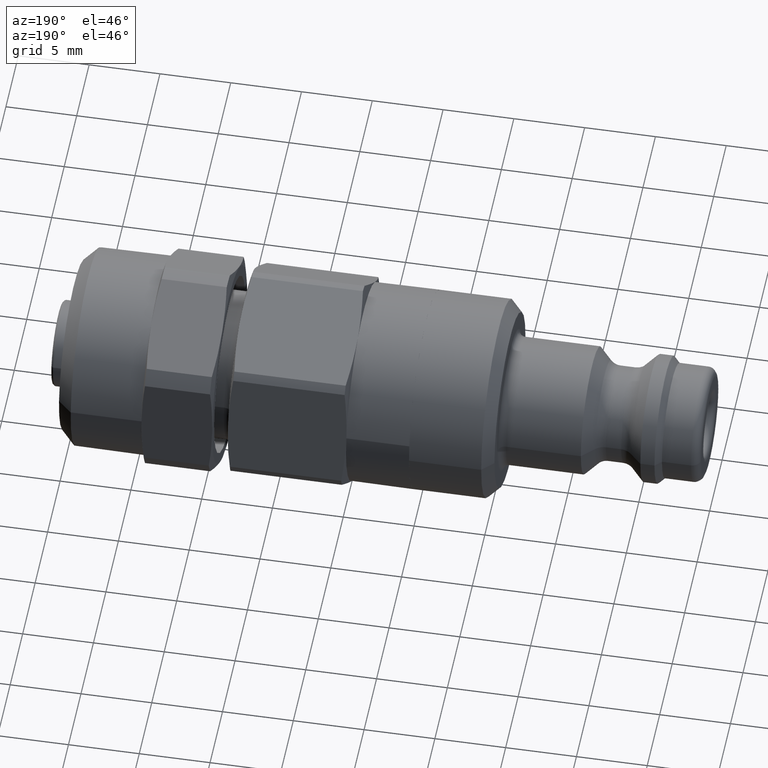
[diagram: clean part render]
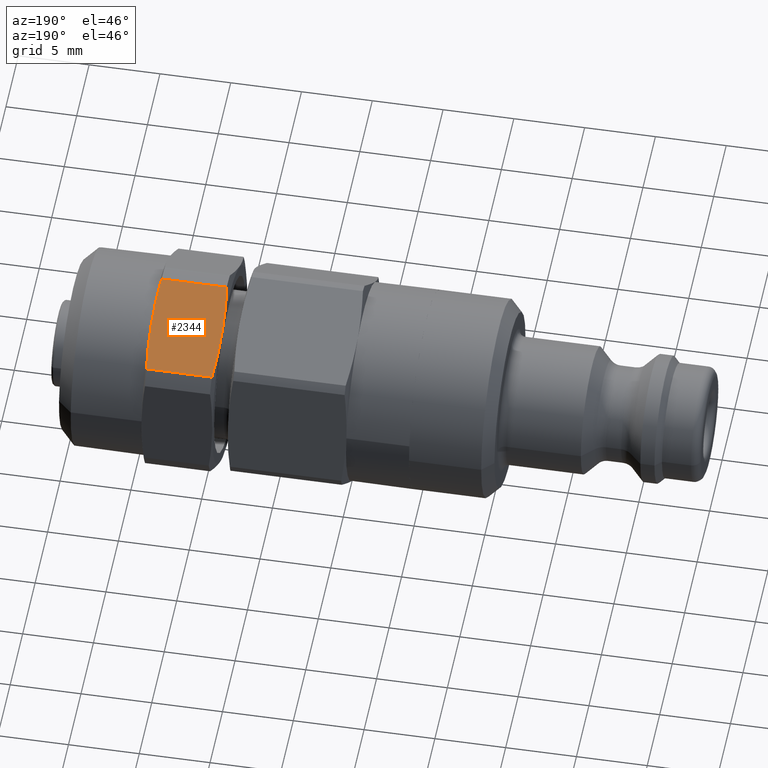
[diagram: same view with one face highlighted and labeled with its STEP entity id]
A machine part, auxiliary view. The second image highlights one B-rep face of the part: STEP entity #2344.
In plain terms, the highlighted planar face has unit normal (0, -0.4352, -0.9003).
Its self-contained STEP definition (entity closure, byte-faithful):
#2261=CARTESIAN_POINT('',(11.450868316666465,3.499999999999996,-6.062177826491075));
#2262=DIRECTION('',(0.0,-0.499999999999999,0.866025403784439));
#2263=DIRECTION('',(0.0,-0.866025403784439,-0.499999999999999));
#2264=AXIS2_PLACEMENT_3D('',#2261,#2262,#2263);
#2265=PLANE('',#2264);
#2266=CARTESIAN_POINT('',(6.000000000000001,3.499999999999996,-6.062177826491075));
#2267=VERTEX_POINT('',#2266);
#2268=CARTESIAN_POINT('',(6.200961894323342,0.619570344549269,-7.72519466344733));
#2269=VERTEX_POINT('',#2268);
#2270=CARTESIAN_POINT('',(6.000000000000002,3.499999999999996,-6.062177826491077));
#2271=CARTESIAN_POINT('',(6.000000000000002,2.133016434701335,-6.851406155894052));
#2272=CARTESIAN_POINT('',(6.200961894323342,0.619570344549265,-7.725194663447334));
#2280=(BOUNDED_CURVE()B_SPLINE_CURVE(2,(#2270,#2271,#2272),.UNSPECIFIED.,.F.,.U.)B_SPLINE_CURVE_WITH_KNOTS((3,3),(0.333349567326485,0.666699134652969),.UNSPECIFIED.)CURVE()GEOMETRIC_REPRESENTATION_ITEM()RATIONAL_B_SPLINE_CURVE((1.0,1.026436275942834,1.0))REPRESENTATION_ITEM(''));
#2281=EDGE_CURVE('',#2267,#2269,#2280,.T.);
#2282=ORIENTED_EDGE('',*,*,#2281,.F.);
#2283=CARTESIAN_POINT('',(6.200961894323342,6.380429655450723,-4.399160989534821));
#2284=VERTEX_POINT('',#2283);
#2285=CARTESIAN_POINT('',(6.200961894323342,6.380429655450728,-4.399160989534818));
#2286=CARTESIAN_POINT('',(6.000000000000002,4.866983565298657,-5.272949497088101));
#2287=CARTESIAN_POINT('',(6.000000000000002,3.499999999999996,-6.062177826491077));
#2295=(BOUNDED_CURVE()B_SPLINE_CURVE(2,(#2285,#2286,#2287),.UNSPECIFIED.,.F.,.U.)B_SPLINE_CURVE_WITH_KNOTS((3,3),(0.0,0.333349567326485),.UNSPECIFIED.)CURVE()GEOMETRIC_REPRESENTATION_ITEM()RATIONAL_B_SPLINE_CURVE((1.0,1.026436275942806,1.0))REPRESENTATION_ITEM(''));
#2296=EDGE_CURVE('',#2284,#2267,#2295,.T.);
#2297=ORIENTED_EDGE('',*,*,#2296,.F.);
#2298=CARTESIAN_POINT('',(10.799038105676662,6.38042965545072,-4.399160989534822));
#2299=VERTEX_POINT('',#2298);
#2300=CARTESIAN_POINT('',(10.799038105676662,6.38042965545072,-4.399160989534822));
#2301=DIRECTION('',(-1.0,0.0,0.0));
#2302=VECTOR('',#2301,4.598076211353319);
#2303=LINE('',#2300,#2302);
#2304=EDGE_CURVE('',#2299,#2284,#2303,.T.);
#2305=ORIENTED_EDGE('',*,*,#2304,.F.);
#2306=CARTESIAN_POINT('',(11.0,3.499999999999996,-6.062177826491075));
#2307=VERTEX_POINT('',#2306);
#2308=CARTESIAN_POINT('',(11.0,3.499999999999996,-6.062177826491075));
#2309=CARTESIAN_POINT('',(11.000000000000004,4.866983565298631,-5.272949497088115));
#2310=CARTESIAN_POINT('',(10.799038105676662,6.380429655450703,-4.399160989534831));
#2318=(BOUNDED_CURVE()B_SPLINE_CURVE(2,(#2308,#2309,#2310),.UNSPECIFIED.,.F.,.U.)B_SPLINE_CURVE_WITH_KNOTS((3,3),(0.333349567326482,0.666699134652963),.UNSPECIFIED.)CURVE()GEOMETRIC_REPRESENTATION_ITEM()RATIONAL_B_SPLINE_CURVE((1.0,1.026436275942946,1.0))REPRESENTATION_ITEM(''));
#2319=EDGE_CURVE('',#2307,#2299,#2318,.T.);
#2320=ORIENTED_EDGE('',*,*,#2319,.F.);
#2321=CARTESIAN_POINT('',(10.799038105676662,0.619570344549272,-7.725194663447327));
#2322=VERTEX_POINT('',#2321);
#2323=CARTESIAN_POINT('',(10.799038105676662,0.619570344549289,-7.725194663447319));
#2324=CARTESIAN_POINT('',(10.999999999999998,2.133016434701362,-6.851406155894035));
#2325=CARTESIAN_POINT('',(11.0,3.499999999999996,-6.062177826491075));
#2333=(BOUNDED_CURVE()B_SPLINE_CURVE(2,(#2323,#2324,#2325),.UNSPECIFIED.,.F.,.U.)B_SPLINE_CURVE_WITH_KNOTS((3,3),(0.0,0.333349567326482),.UNSPECIFIED.)CURVE()GEOMETRIC_REPRESENTATION_ITEM()RATIONAL_B_SPLINE_CURVE((1.0,1.026436275942916,1.0))REPRESENTATION_ITEM(''));
#2334=EDGE_CURVE('',#2322,#2307,#2333,.T.);
#2335=ORIENTED_EDGE('',*,*,#2334,.F.);
#2336=CARTESIAN_POINT('',(6.200961894323343,0.619570344549272,-7.725194663447327));
#2337=DIRECTION('',(1.0,0.0,0.0));
#2338=VECTOR('',#2337,4.598076211353319);
#2339=LINE('',#2336,#2338);
#2340=EDGE_CURVE('',#2269,#2322,#2339,.T.);
#2341=ORIENTED_EDGE('',*,*,#2340,.F.);
#2342=EDGE_LOOP('',(#2282,#2297,#2305,#2320,#2335,#2341));
#2343=FACE_OUTER_BOUND('',#2342,.T.);
#2344=ADVANCED_FACE('',(#2343),#2265,.F.);